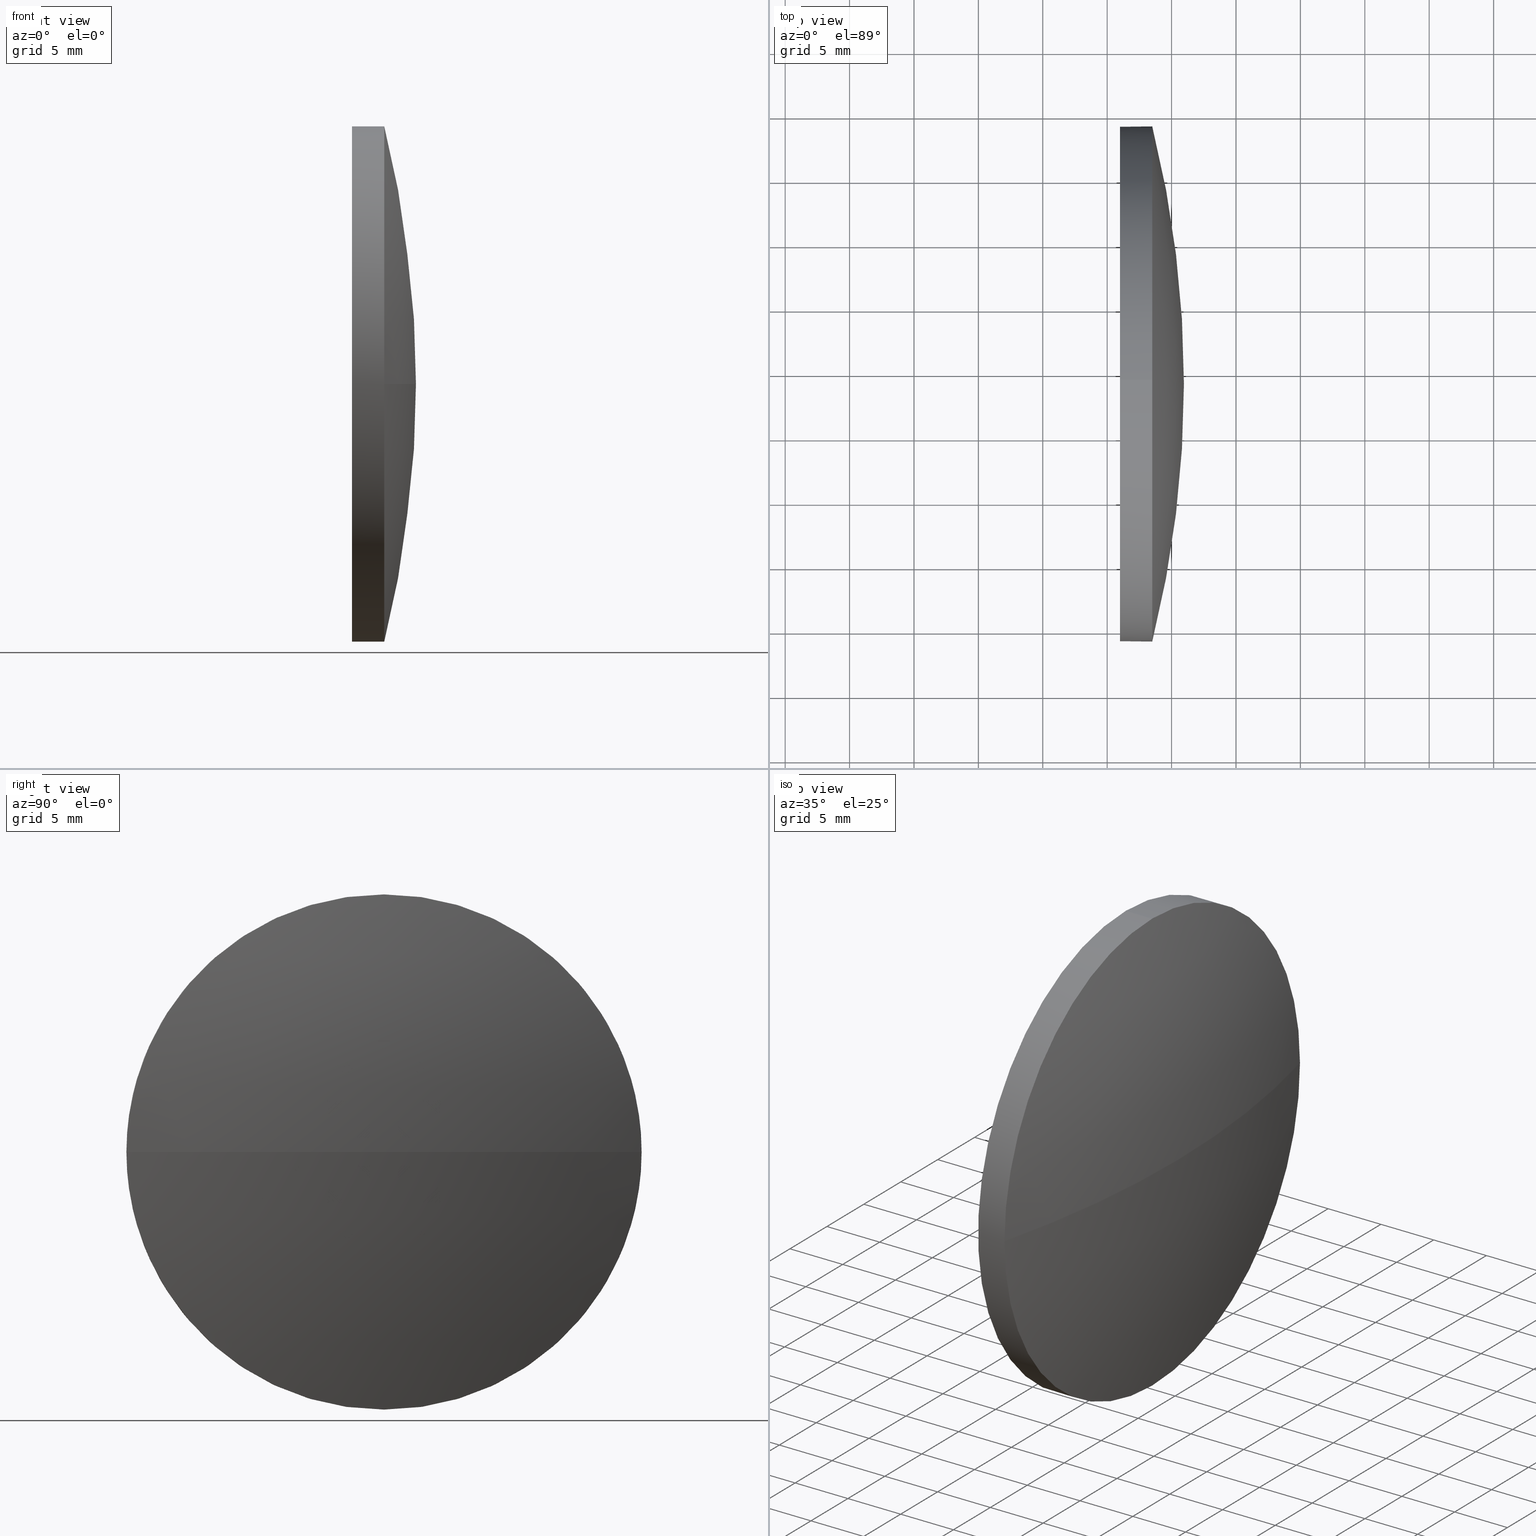
[diagram: canonical four-view strip — front | top / right | iso, engineering-drawing reading convention]
A machine part, canonical four-view strip (front | top / right | iso — engineering-drawing reading convention). The complete STEP part file that produces these views, byte-faithful:
ISO-10303-21;
HEADER;
FILE_DESCRIPTION (( 'STEP AP214' ),
    '1' );
FILE_NAME ('100232.STEP',
    '2019-05-27T05:33:40',
    ( '' ),
    ( '' ),
    'SwSTEP 2.0',
    'SolidWorks 2016',
    '' );
FILE_SCHEMA (( 'AUTOMOTIVE_DESIGN' ));
ENDSEC;

DATA;
#1 = DIRECTION ( 'NONE',  ( 0.0000000000000000000, 0.0000000000000000000, 1.000000000000000000 ) ) ;
#2 =( GEOMETRIC_REPRESENTATION_CONTEXT ( 3 ) GLOBAL_UNCERTAINTY_ASSIGNED_CONTEXT ( ( #7 ) ) GLOBAL_UNIT_ASSIGNED_CONTEXT ( ( #137, #120, #52 ) ) REPRESENTATION_CONTEXT ( 'NONE', 'WORKASPACE' ) );
#3 = VERTEX_POINT ( 'NONE', #4 ) ;
#4 = CARTESIAN_POINT ( 'NONE',  ( 533.4993253388914800, 14.05586317027587200, -19.99999999999999600 ) ) ;
#5 = AXIS2_PLACEMENT_3D ( 'NONE', #161, #34, #134 ) ;
#6 = CARTESIAN_POINT ( 'NONE',  ( 533.4993253388914800, 14.05586317027587000, 0.0000000000000000000 ) ) ;
#7 = UNCERTAINTY_MEASURE_WITH_UNIT (LENGTH_MEASURE( 1.000000000000000100E-005 ), #137, 'distance_accuracy_value', 'NONE');
#8 = CIRCLE ( 'NONE', #90, 82.53081300813008200 ) ;
#9 = DIRECTION ( 'NONE',  ( 0.0000000000000000000, 1.000000000000000000, 1.224646799147353200E-016 ) ) ;
#10 = MECHANICAL_DESIGN_GEOMETRIC_PRESENTATION_REPRESENTATION (  '', ( #83 ), #98 ) ;
#11 = DIRECTION ( 'NONE',  ( -1.000000000000000000, -0.0000000000000000000, -0.0000000000000000000 ) ) ;
#12 = CIRCLE ( 'NONE', #73, 19.99999999999999600 ) ;
#13 = CARTESIAN_POINT ( 'NONE',  ( 527.0343717279055200, 14.05586317027587000, 19.99999999999999600 ) ) ;
#14 = PRESENTATION_LAYER_ASSIGNMENT (  '', '', ( #83 ) ) ;
#15 = EDGE_LOOP ( 'NONE', ( #45, #172, #133, #116 ) ) ;
#16 = VERTEX_POINT ( 'NONE', #139 ) ;
#17 = EDGE_CURVE ( 'NONE', #61, #152, #105, .T. ) ;
#18 = VERTEX_POINT ( 'NONE', #108 ) ;
#19 = CARTESIAN_POINT ( 'NONE',  ( 453.4285123307613500, 14.05586317027580800, 0.0000000000000000000 ) ) ;
#20 = ORIENTED_EDGE ( 'NONE', *, *, #101, .T. ) ;
#21 = AXIS2_PLACEMENT_3D ( 'NONE', #111, #180, #166 ) ;
#22 = DIRECTION ( 'NONE',  ( 0.0000000000000000000, 0.0000000000000000000, 1.000000000000000000 ) ) ;
#23 =( NAMED_UNIT ( * ) PLANE_ANGLE_UNIT ( ) SI_UNIT ( $, .RADIAN. ) );
#24 = ORIENTED_EDGE ( 'NONE', *, *, #57, .F. ) ;
#25 = ADVANCED_FACE ( 'NONE', ( #119 ), #112, .T. ) ;
#26 =( NAMED_UNIT ( * ) PLANE_ANGLE_UNIT ( ) SI_UNIT ( $, .RADIAN. ) );
#27 = APPLICATION_CONTEXT ( 'automotive_design' ) ;
#28 = AXIS2_PLACEMENT_3D ( 'NONE', #32, #78, #59 ) ;
#29 = CIRCLE ( 'NONE', #127, 19.99999999999999600 ) ;
#30 = EDGE_CURVE ( 'NONE', #77, #61, #110, .T. ) ;
#31 = FACE_OUTER_BOUND ( 'NONE', #15, .T. ) ;
#32 = CARTESIAN_POINT ( 'NONE',  ( 527.0343717279055200, 14.05586317027587000, 0.0000000000000000000 ) ) ;
#33 = AXIS2_PLACEMENT_3D ( 'NONE', #42, #136, #87 ) ;
#34 = DIRECTION ( 'NONE',  ( -0.0000000000000000000, 0.0000000000000000000, -1.000000000000000000 ) ) ;
#35 = DIRECTION ( 'NONE',  ( 0.0000000000000000000, 0.0000000000000000000, 1.000000000000000000 ) ) ;
#36 = ORIENTED_EDGE ( 'NONE', *, *, #101, .F. ) ;
#37 = AXIS2_PLACEMENT_3D ( 'NONE', #19, #86, #9 ) ;
#38 = DIRECTION ( 'NONE',  ( 0.0000000000000000000, 1.000000000000000000, 0.0000000000000000000 ) ) ;
#39 = ADVANCED_BREP_SHAPE_REPRESENTATION ( '100232', ( #154, #144 ), #93 ) ;
#40 = FILL_AREA_STYLE_COLOUR ( '', #117 ) ;
#41 = DIRECTION ( 'NONE',  ( 1.000000000000000000, 0.0000000000000000000, 0.0000000000000000000 ) ) ;
#42 = CARTESIAN_POINT ( 'NONE',  ( 533.4993253388914800, 14.05586317027587000, 0.0000000000000000000 ) ) ;
#43 = STYLED_ITEM ( 'NONE', ( #123 ), #39 ) ;
#44 = SURFACE_SIDE_STYLE ('',( #115 ) ) ;
#45 = ORIENTED_EDGE ( 'NONE', *, *, #91, .F. ) ;
#46 = PRESENTATION_STYLE_ASSIGNMENT (( #145 ) ) ;
#47 = CARTESIAN_POINT ( 'NONE',  ( 533.4993253388914800, 14.05586317027587000, 0.0000000000000000000 ) ) ;
#48 = MECHANICAL_DESIGN_GEOMETRIC_PRESENTATION_REPRESENTATION (  '', ( #43 ), #2 ) ;
#49 = DIRECTION ( 'NONE',  ( 0.0000000000000000000, 0.0000000000000000000, -1.000000000000000000 ) ) ;
#50 = ORIENTED_EDGE ( 'NONE', *, *, #67, .T. ) ;
#51 = CARTESIAN_POINT ( 'NONE',  ( 453.4285123307613500, 14.05586317027580800, 0.0000000000000000000 ) ) ;
#52 =( NAMED_UNIT ( * ) SI_UNIT ( $, .STERADIAN. ) SOLID_ANGLE_UNIT ( ) );
#53 = SHAPE_DEFINITION_REPRESENTATION ( #178, #39 ) ;
#54 = ORIENTED_EDGE ( 'NONE', *, *, #57, .T. ) ;
#55 = DIRECTION ( 'NONE',  ( 0.0000000000000000000, 0.0000000000000000000, 1.000000000000000000 ) ) ;
#56 = AXIS2_PLACEMENT_3D ( 'NONE', #47, #181, #63 ) ;
#57 = EDGE_CURVE ( 'NONE', #18, #16, #75, .T. ) ;
#58 = ORIENTED_EDGE ( 'NONE', *, *, #30, .T. ) ;
#59 = DIRECTION ( 'NONE',  ( 0.0000000000000000000, 0.0000000000000000000, 1.000000000000000000 ) ) ;
#60 = AXIS2_PLACEMENT_3D ( 'NONE', #95, #170, #35 ) ;
#61 = VERTEX_POINT ( 'NONE', #130 ) ;
#62 = CARTESIAN_POINT ( 'NONE',  ( 533.4993253388914800, -5.944136829724194500, -2.449293598294706900E-015 ) ) ;
#63 = DIRECTION ( 'NONE',  ( 0.0000000000000000000, 0.0000000000000000000, 1.000000000000000000 ) ) ;
#64 =( NAMED_UNIT ( * ) SI_UNIT ( $, .STERADIAN. ) SOLID_ANGLE_UNIT ( ) );
#65 = AXIS2_PLACEMENT_3D ( 'NONE', #113, #158, #49 ) ;
#66 = FACE_OUTER_BOUND ( 'NONE', #165, .T. ) ;
#67 = EDGE_CURVE ( 'NONE', #16, #18, #29, .T. ) ;
#68 = DIRECTION ( 'NONE',  ( -0.0000000000000000000, 0.0000000000000000000, 1.000000000000000000 ) ) ;
#69 = APPLICATION_PROTOCOL_DEFINITION ( 'draft international standard', 'automotive_design', 1998, #27 ) ;
#70 = SPHERICAL_SURFACE ( 'NONE', #5, 82.53081300813008200 ) ;
#71 = APPLICATION_PROTOCOL_DEFINITION ( 'draft international standard', 'automotive_design', 1998, #176 ) ;
#72 = PRODUCT_CONTEXT ( 'NONE', #27, 'mechanical' ) ;
#73 = AXIS2_PLACEMENT_3D ( 'NONE', #148, #185, #1 ) ;
#74 = CARTESIAN_POINT ( 'NONE',  ( 535.9593253388914000, 14.05586317027581300, 0.0000000000000000000 ) ) ;
#75 = CIRCLE ( 'NONE', #21, 19.99999999999999600 ) ;
#76 = CYLINDRICAL_SURFACE ( 'NONE', #60, 19.99999999999999600 ) ;
#77 = VERTEX_POINT ( 'NONE', #62 ) ;
#78 = DIRECTION ( 'NONE',  ( -1.000000000000000000, -0.0000000000000000000, -0.0000000000000000000 ) ) ;
#79 = ORIENTED_EDGE ( 'NONE', *, *, #169, .F. ) ;
#80 = AXIS2_PLACEMENT_3D ( 'NONE', #51, #132, #38 ) ;
#81 = CIRCLE ( 'NONE', #33, 19.99999999999999600 ) ;
#82 = CARTESIAN_POINT ( 'NONE',  ( 453.4285123307613500, 14.05586317027580800, 0.0000000000000000000 ) ) ;
#83 = STYLED_ITEM ( 'NONE', ( #46 ), #154 ) ;
#84 = FILL_AREA_STYLE_COLOUR ( '', #99 ) ;
#85 = ORIENTED_EDGE ( 'NONE', *, *, #67, .F. ) ;
#86 = DIRECTION ( 'NONE',  ( 0.0000000000000000000, 1.224646799147353200E-016, -1.000000000000000000 ) ) ;
#87 = DIRECTION ( 'NONE',  ( 0.0000000000000000000, 0.0000000000000000000, 1.000000000000000000 ) ) ;
#88 = ORIENTED_EDGE ( 'NONE', *, *, #17, .T. ) ;
#89 = ADVANCED_FACE ( 'NONE', ( #31 ), #70, .T. ) ;
#90 = AXIS2_PLACEMENT_3D ( 'NONE', #82, #68, #142 ) ;
#91 = EDGE_CURVE ( 'NONE', #157, #77, #177, .T. ) ;
#92 = ORIENTED_EDGE ( 'NONE', *, *, #91, .T. ) ;
#93 =( GEOMETRIC_REPRESENTATION_CONTEXT ( 3 ) GLOBAL_UNCERTAINTY_ASSIGNED_CONTEXT ( ( #183 ) ) GLOBAL_UNIT_ASSIGNED_CONTEXT ( ( #149, #26, #174 ) ) REPRESENTATION_CONTEXT ( 'NONE', 'WORKASPACE' ) );
#94 = CARTESIAN_POINT ( 'NONE',  ( 530.9993253388914800, 14.05586317027587000, 0.0000000000000000000 ) ) ;
#95 = CARTESIAN_POINT ( 'NONE',  ( 527.0343717279055200, 14.05586317027587000, 0.0000000000000000000 ) ) ;
#96 = EDGE_LOOP ( 'NONE', ( #36, #138, #58, #160, #85 ) ) ;
#97 = FILL_AREA_STYLE ('',( #84 ) ) ;
#98 =( GEOMETRIC_REPRESENTATION_CONTEXT ( 3 ) GLOBAL_UNCERTAINTY_ASSIGNED_CONTEXT ( ( #129 ) ) GLOBAL_UNIT_ASSIGNED_CONTEXT ( ( #159, #23, #64 ) ) REPRESENTATION_CONTEXT ( 'NONE', 'WORKASPACE' ) );
#99 = COLOUR_RGB ( '',1.000000000000000000, 1.000000000000000000, 1.000000000000000000 ) ;
#100 = ORIENTED_EDGE ( 'NONE', *, *, #179, .F. ) ;
#101 = EDGE_CURVE ( 'NONE', #3, #16, #153, .T. ) ;
#102 = PRODUCT ( '100232', '100232', '', ( #72 ) ) ;
#103 = SPHERICAL_SURFACE ( 'NONE', #80, 82.53081300813008200 ) ;
#104 = FILL_AREA_STYLE ('',( #40 ) ) ;
#105 = CIRCLE ( 'NONE', #126, 19.99999999999999600 ) ;
#106 = ORIENTED_EDGE ( 'NONE', *, *, #169, .T. ) ;
#107 = DIRECTION ( 'NONE',  ( -1.000000000000000000, -0.0000000000000000000, -0.0000000000000000000 ) ) ;
#108 = CARTESIAN_POINT ( 'NONE',  ( 530.9993253388914800, 14.05586317027587000, 19.99999999999999600 ) ) ;
#109 = VECTOR ( 'NONE', #173, 1000.000000000000000 ) ;
#110 = CIRCLE ( 'NONE', #56, 19.99999999999999600 ) ;
#111 = CARTESIAN_POINT ( 'NONE',  ( 530.9993253388914800, 14.05586317027587000, 0.0000000000000000000 ) ) ;
#112 = CYLINDRICAL_SURFACE ( 'NONE', #28, 19.99999999999999600 ) ;
#113 = CARTESIAN_POINT ( 'NONE',  ( 530.9993253388914800, 14.05586317027587000, 0.0000000000000000000 ) ) ;
#114 = SURFACE_SIDE_STYLE ('',( #150 ) ) ;
#115 = SURFACE_STYLE_FILL_AREA ( #104 ) ;
#116 = ORIENTED_EDGE ( 'NONE', *, *, #30, .F. ) ;
#117 = COLOUR_RGB ( '',1.000000000000000000, 1.000000000000000000, 1.000000000000000000 ) ;
#118 = SURFACE_STYLE_USAGE ( .BOTH. , #44 ) ;
#119 = FACE_OUTER_BOUND ( 'NONE', #125, .T. ) ;
#120 =( NAMED_UNIT ( * ) PLANE_ANGLE_UNIT ( ) SI_UNIT ( $, .RADIAN. ) );
#121 = CARTESIAN_POINT ( 'NONE',  ( 0.0000000000000000000, 0.0000000000000000000, 0.0000000000000000000 ) ) ;
#122 = ADVANCED_FACE ( 'NONE', ( #66 ), #171, .F. ) ;
#123 = PRESENTATION_STYLE_ASSIGNMENT (( #118 ) ) ;
#124 = ADVANCED_FACE ( 'NONE', ( #163 ), #103, .T. ) ;
#125 = EDGE_LOOP ( 'NONE', ( #106, #20, #24, #100, #88 ) ) ;
#126 = AXIS2_PLACEMENT_3D ( 'NONE', #6, #107, #164 ) ;
#127 = AXIS2_PLACEMENT_3D ( 'NONE', #94, #131, #22 ) ;
#128 = ORIENTED_EDGE ( 'NONE', *, *, #135, .F. ) ;
#129 = UNCERTAINTY_MEASURE_WITH_UNIT (LENGTH_MEASURE( 1.000000000000000100E-005 ), #159, 'distance_accuracy_value', 'NONE');
#130 = CARTESIAN_POINT ( 'NONE',  ( 533.4993253388914800, 14.05586317027587000, 19.99999999999999600 ) ) ;
#131 = DIRECTION ( 'NONE',  ( -1.000000000000000000, -0.0000000000000000000, -0.0000000000000000000 ) ) ;
#132 = DIRECTION ( 'NONE',  ( -0.0000000000000000000, 0.0000000000000000000, -1.000000000000000000 ) ) ;
#133 = ORIENTED_EDGE ( 'NONE', *, *, #17, .F. ) ;
#134 = DIRECTION ( 'NONE',  ( 0.0000000000000000000, 1.000000000000000000, 0.0000000000000000000 ) ) ;
#135 = EDGE_CURVE ( 'NONE', #157, #152, #8, .T. ) ;
#136 = DIRECTION ( 'NONE',  ( -1.000000000000000000, -0.0000000000000000000, -0.0000000000000000000 ) ) ;
#137 =( LENGTH_UNIT ( ) NAMED_UNIT ( * ) SI_UNIT ( .MILLI., .METRE. ) );
#138 = ORIENTED_EDGE ( 'NONE', *, *, #141, .T. ) ;
#139 = CARTESIAN_POINT ( 'NONE',  ( 530.9993253388914800, 14.05586317027587200, -19.99999999999999600 ) ) ;
#140 = EDGE_LOOP ( 'NONE', ( #128, #92, #175, #79 ) ) ;
#141 = EDGE_CURVE ( 'NONE', #3, #77, #12, .T. ) ;
#142 = DIRECTION ( 'NONE',  ( 1.000000000000000000, 0.0000000000000000000, 0.0000000000000000000 ) ) ;
#143 = CLOSED_SHELL ( 'NONE', ( #25, #124, #89, #151, #122 ) ) ;
#144 = AXIS2_PLACEMENT_3D ( 'NONE', #121, #55, #41 ) ;
#145 = SURFACE_STYLE_USAGE ( .BOTH. , #114 ) ;
#146 = PRODUCT_DEFINITION_CONTEXT ( 'detailed design', #176, 'design' ) ;
#147 = CARTESIAN_POINT ( 'NONE',  ( 527.0343717279055200, 14.05586317027587200, -19.99999999999999600 ) ) ;
#148 = CARTESIAN_POINT ( 'NONE',  ( 533.4993253388914800, 14.05586317027587000, 0.0000000000000000000 ) ) ;
#149 =( LENGTH_UNIT ( ) NAMED_UNIT ( * ) SI_UNIT ( .MILLI., .METRE. ) );
#150 = SURFACE_STYLE_FILL_AREA ( #97 ) ;
#151 = ADVANCED_FACE ( 'NONE', ( #186 ), #76, .T. ) ;
#152 = VERTEX_POINT ( 'NONE', #167 ) ;
#153 = LINE ( 'NONE', #147, #182 ) ;
#154 = MANIFOLD_SOLID_BREP ( '��ת1', #143 ) ;
#155 = PRODUCT_DEFINITION_FORMATION_WITH_SPECIFIED_SOURCE ( '�κ�', '', #102, .NOT_KNOWN. ) ;
#156 = LINE ( 'NONE', #13, #109 ) ;
#157 = VERTEX_POINT ( 'NONE', #74 ) ;
#158 = DIRECTION ( 'NONE',  ( 1.000000000000000000, 0.0000000000000000000, 0.0000000000000000000 ) ) ;
#159 =( LENGTH_UNIT ( ) NAMED_UNIT ( * ) SI_UNIT ( .MILLI., .METRE. ) );
#160 = ORIENTED_EDGE ( 'NONE', *, *, #179, .T. ) ;
#161 = CARTESIAN_POINT ( 'NONE',  ( 453.4285123307613500, 14.05586317027580800, 0.0000000000000000000 ) ) ;
#162 = PRODUCT_RELATED_PRODUCT_CATEGORY ( 'part', '', ( #102 ) ) ;
#163 = FACE_OUTER_BOUND ( 'NONE', #140, .T. ) ;
#164 = DIRECTION ( 'NONE',  ( 0.0000000000000000000, 0.0000000000000000000, 1.000000000000000000 ) ) ;
#165 = EDGE_LOOP ( 'NONE', ( #54, #50 ) ) ;
#166 = DIRECTION ( 'NONE',  ( 0.0000000000000000000, 0.0000000000000000000, 1.000000000000000000 ) ) ;
#167 = CARTESIAN_POINT ( 'NONE',  ( 533.4993253388914800, 34.05586317027587000, 0.0000000000000000000 ) ) ;
#168 = PRODUCT_DEFINITION ( 'δ֪', '', #155, #146 ) ;
#169 = EDGE_CURVE ( 'NONE', #152, #3, #81, .T. ) ;
#170 = DIRECTION ( 'NONE',  ( -1.000000000000000000, -0.0000000000000000000, -0.0000000000000000000 ) ) ;
#171 = PLANE ( 'NONE',  #65 ) ;
#172 = ORIENTED_EDGE ( 'NONE', *, *, #135, .T. ) ;
#173 = DIRECTION ( 'NONE',  ( -1.000000000000000000, -0.0000000000000000000, -0.0000000000000000000 ) ) ;
#174 =( NAMED_UNIT ( * ) SI_UNIT ( $, .STERADIAN. ) SOLID_ANGLE_UNIT ( ) );
#175 = ORIENTED_EDGE ( 'NONE', *, *, #141, .F. ) ;
#176 = APPLICATION_CONTEXT ( 'automotive_design' ) ;
#177 = CIRCLE ( 'NONE', #37, 82.53081300813008200 ) ;
#178 = PRODUCT_DEFINITION_SHAPE ( 'NONE', 'NONE',  #168 ) ;
#179 = EDGE_CURVE ( 'NONE', #61, #18, #156, .T. ) ;
#180 = DIRECTION ( 'NONE',  ( -1.000000000000000000, -0.0000000000000000000, -0.0000000000000000000 ) ) ;
#181 = DIRECTION ( 'NONE',  ( -1.000000000000000000, -0.0000000000000000000, -0.0000000000000000000 ) ) ;
#182 = VECTOR ( 'NONE', #11, 1000.000000000000000 ) ;
#183 = UNCERTAINTY_MEASURE_WITH_UNIT (LENGTH_MEASURE( 1.000000000000000100E-005 ), #149, 'distance_accuracy_value', 'NONE');
#184 = PRESENTATION_LAYER_ASSIGNMENT (  '', '', ( #43 ) ) ;
#185 = DIRECTION ( 'NONE',  ( -1.000000000000000000, -0.0000000000000000000, -0.0000000000000000000 ) ) ;
#186 = FACE_OUTER_BOUND ( 'NONE', #96, .T. ) ;
ENDSEC;
END-ISO-10303-21;
